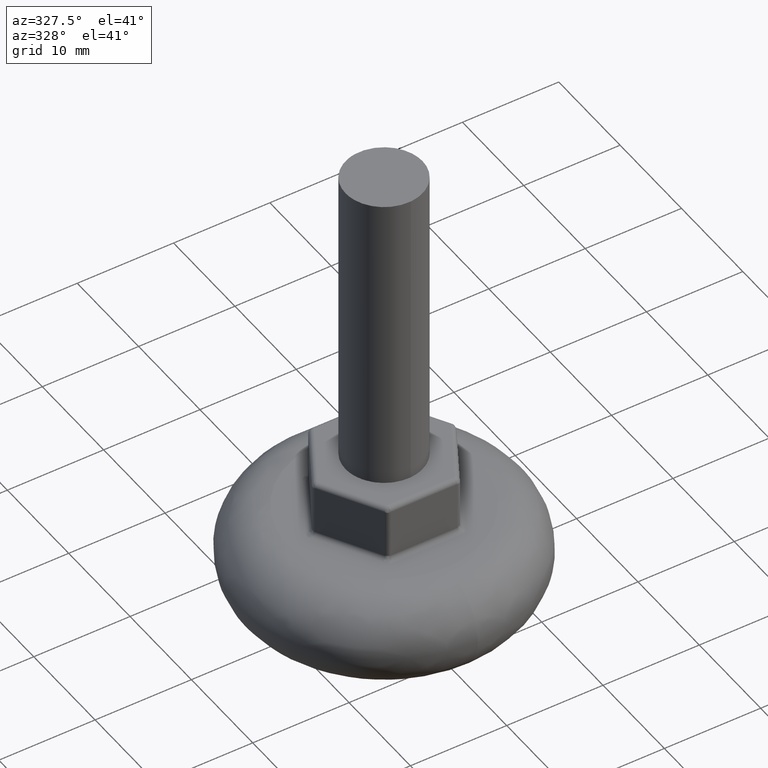
[diagram: clean part render]
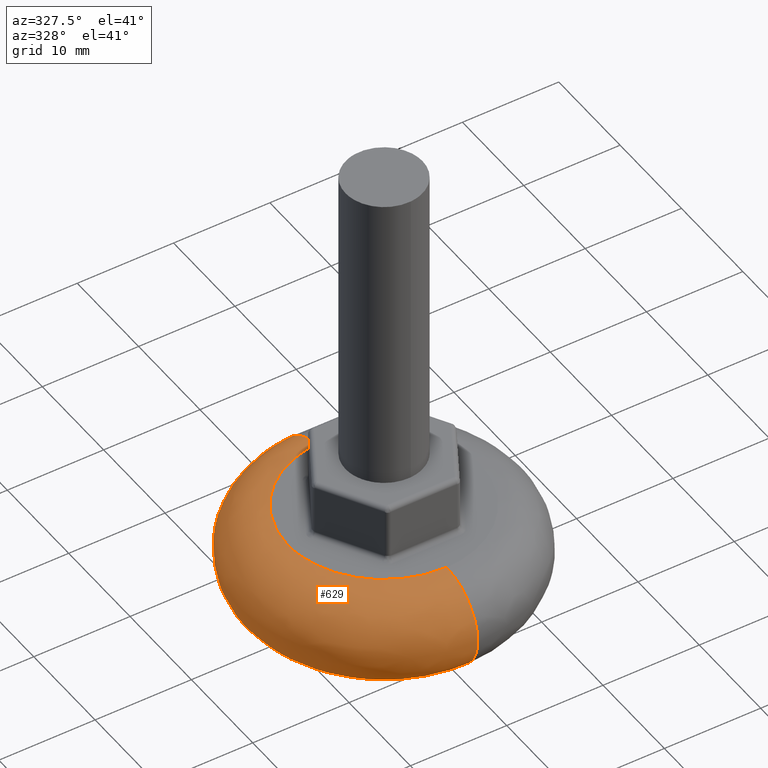
[diagram: same view with one face highlighted and labeled with its STEP entity id]
A machine part, auxiliary view. The second image highlights one B-rep face of the part: STEP entity #629.
In plain terms, the highlighted face is a freeform B-spline surface patch.
Its self-contained STEP definition (entity closure, byte-faithful):
#431=CARTESIAN_POINT('',(-0.697329160819693,9.975647072016340,1.951116E-011));
#432=VERTEX_POINT('',#431);
#450=CARTESIAN_POINT('',(-0.697332515771808,9.975656738490059,9.999999999999998));
#451=VERTEX_POINT('',#450);
#452=CARTESIAN_POINT('',(-0.697332515771808,9.975656738490059,9.999999999999998));
#453=CARTESIAN_POINT('',(-1.045998773638240,14.963485107519068,9.999999999826517));
#454=CARTESIAN_POINT('',(-1.045997440539177,14.963485200750728,5.000000000004879));
#455=CARTESIAN_POINT('',(-1.045996107437481,14.963485293982563,-0.000009876807347));
#456=CARTESIAN_POINT('',(-0.697329160819693,9.975647072016342,1.951116E-011));
#464=(BOUNDED_CURVE()B_SPLINE_CURVE(2,(#452,#453,#454,#455,#456),.UNSPECIFIED.,.F.,.U.)B_SPLINE_CURVE_WITH_KNOTS((3,2,3),(-3.793812489392083,-2.0,-0.206185088074748),.UNSPECIFIED.)CURVE()GEOMETRIC_REPRESENTATION_ITEM()RATIONAL_B_SPLINE_CURVE((0.913747050114148,0.668278774904981,0.977505800795127,0.668278357295710,0.913747713122070))REPRESENTATION_ITEM(''));
#465=EDGE_CURVE('',#451,#432,#464,.T.);
#484=CARTESIAN_POINT('',(0.125660398999122,-9.999210442551867,9.999999999999998));
#485=VERTEX_POINT('',#484);
#499=CARTESIAN_POINT('',(0.125660398968713,-9.999210442366941,8.313839E-016));
#500=VERTEX_POINT('',#499);
#501=CARTESIAN_POINT('',(0.125660398999122,-9.999210442551867,9.999999999999998));
#502=CARTESIAN_POINT('',(0.188490598250293,-14.998815663057238,9.999999998968503));
#503=CARTESIAN_POINT('',(0.188490598250292,-14.998815663057240,5.0));
#504=CARTESIAN_POINT('',(0.188490598250293,-14.998815663057240,6.609087E-010));
#505=CARTESIAN_POINT('',(0.125660398968713,-9.999210442366941,8.313839E-016));
#513=(BOUNDED_CURVE()B_SPLINE_CURVE(2,(#501,#502,#503,#504,#505),.UNSPECIFIED.,.F.,.U.)B_SPLINE_CURVE_WITH_KNOTS((3,2,3),(-3.793812489181637,-2.0,-0.206187510727468),.UNSPECIFIED.)CURVE()GEOMETRIC_REPRESENTATION_ITEM()RATIONAL_B_SPLINE_CURVE((0.934774043604947,0.683657093796952,1.0,0.683657093780923,0.934774043630396))REPRESENTATION_ITEM(''));
#514=EDGE_CURVE('',#485,#500,#513,.T.);
#532=CARTESIAN_POINT('',(0.116764266952522,-9.291316024830799,9.949626890274072));
#533=CARTESIAN_POINT('',(-9.174551757878277,-9.408080291783319,9.949626890274073));
#534=CARTESIAN_POINT('',(-9.291316024830799,-0.116764266952523,9.949626890274072));
#535=CARTESIAN_POINT('',(-9.401582761984905,8.657521982301649,9.949626890274075));
#536=CARTESIAN_POINT('',(-0.647964838406181,9.269429806385281,9.949626890274073));
#537=CARTESIAN_POINT('',(0.188490598250293,-14.998815663057236,10.766040997154828));
#538=CARTESIAN_POINT('',(-14.810325064806944,-15.187306261307528,10.766040997154828));
#539=CARTESIAN_POINT('',(-14.998815663057236,-0.188490598250293,10.766040997154828));
#540=CARTESIAN_POINT('',(-15.176817407903851,13.975692567595450,10.766040997154828));
#541=CARTESIAN_POINT('',(-1.045998773631636,14.963485107606481,10.766040997154825));
#542=CARTESIAN_POINT('',(0.188490598250292,-14.998815663057240,5.0));
#543=CARTESIAN_POINT('',(-14.810325064806939,-15.187306261307533,5.000000000000001));
#544=CARTESIAN_POINT('',(-14.998815663057240,-0.188490598250293,5.0));
#545=CARTESIAN_POINT('',(-15.176817407903860,13.975692567595456,5.000000000000001));
#546=CARTESIAN_POINT('',(-1.045998773631636,14.963485107606484,5.0));
#547=CARTESIAN_POINT('',(0.188490598250292,-14.998815663057238,-0.766051883237120));
#548=CARTESIAN_POINT('',(-14.810325064806944,-15.187306261307528,-0.766051883237120));
#549=CARTESIAN_POINT('',(-14.998815663057238,-0.188490598250293,-0.766051883237120));
#550=CARTESIAN_POINT('',(-15.176817407903854,13.975692567595452,-0.766051883237120));
#551=CARTESIAN_POINT('',(-1.045998773631636,14.963485107606484,-0.766051883237120));
#552=CARTESIAN_POINT('',(0.116764150709547,-9.291306774995706,0.050374432852809));
#553=CARTESIAN_POINT('',(-9.174542624286159,-9.408070925705255,0.050374432852809));
#554=CARTESIAN_POINT('',(-9.291306774995706,-0.116764150709548,0.050374432852809));
#555=CARTESIAN_POINT('',(-9.401573402375361,8.657513363431034,0.050374432852809));
#556=CARTESIAN_POINT('',(-0.647964193334172,9.269420578338695,0.050374432852809));
#564=(BOUNDED_SURFACE()B_SPLINE_SURFACE(2,2,((#532,#537,#542,#547,#552),(#533,#538,#543,#548,#553),(#534,#539,#544,#549,#554),(#535,#540,#545,#550,#555),(#536,#541,#546,#551,#556)),.UNSPECIFIED.,.F.,.F.,.U.)B_SPLINE_SURFACE_WITH_KNOTS((3,2,3),(3,2,3),(0.0,24.852813742385699,48.711514935075961),(0.0,9.129208550381414,18.258428339320218),.UNSPECIFIED.)GEOMETRIC_REPRESENTATION_ITEM()RATIONAL_B_SPLINE_SURFACE(((0.990610515974007,0.652054411383465,1.0,0.652053983043325,0.990611349537385),(0.700467413359925,0.461072095991851,0.707106781186548,0.461071793109633,0.700468002778242),(0.990610515974007,0.652054411383465,1.0,0.652053983043325,0.990611349537385),(0.712073137464488,0.468711388607515,0.718822509939086,0.468711080706981,0.712073736648608),(0.968327525693245,0.637386969561389,0.977505800795127,0.637386550856417,0.968328340506283)))REPRESENTATION_ITEM('')SURFACE());
#565=CARTESIAN_POINT('',(-10.0,0.0,0.0));
#566=VERTEX_POINT('',#565);
#567=CARTESIAN_POINT('',(-10.0,0.0,0.0));
#568=CARTESIAN_POINT('',(-9.999999655630383,9.325366044759520,9.755582E-012));
#569=CARTESIAN_POINT('',(-0.697329160819693,9.975647072016340,1.951116E-011));
#577=(BOUNDED_CURVE()B_SPLINE_CURVE(2,(#567,#568,#569),.UNSPECIFIED.,.F.,.U.)B_SPLINE_CURVE_WITH_KNOTS((3,3),(0.0,0.237833732500926),.UNSPECIFIED.)CURVE()GEOMETRIC_REPRESENTATION_ITEM()RATIONAL_B_SPLINE_CURVE((1.0,0.721360450181545,0.972879973608697))REPRESENTATION_ITEM(''));
#578=EDGE_CURVE('',#566,#432,#577,.T.);
#579=ORIENTED_EDGE('',*,*,#578,.F.);
#580=CARTESIAN_POINT('',(0.125660398968713,-9.999210442366941,8.313839E-016));
#581=CARTESIAN_POINT('',(0.062832680049947,-10.000000000000002,0.0));
#582=CARTESIAN_POINT('',(0.0,-10.0,0.0));
#583=CARTESIAN_POINT('',(-10.000000000000002,-10.000000000000002,0.0));
#584=CARTESIAN_POINT('',(-10.0,0.0,0.0));
#592=(BOUNDED_CURVE()B_SPLINE_CURVE(2,(#580,#581,#582,#583,#584),.UNSPECIFIED.,.F.,.U.)B_SPLINE_CURVE_WITH_KNOTS((3,2,3),(0.747784295917119,0.750000000000000,1.0),.UNSPECIFIED.)CURVE()GEOMETRIC_REPRESENTATION_ITEM()RATIONAL_B_SPLINE_CURVE((0.994854295633404,0.997404141196907,1.0,0.707106781186548,1.0))REPRESENTATION_ITEM(''));
#593=EDGE_CURVE('',#500,#566,#592,.T.);
#594=ORIENTED_EDGE('',*,*,#593,.F.);
#595=ORIENTED_EDGE('',*,*,#514,.F.);
#596=CARTESIAN_POINT('',(-10.0,0.0,10.0));
#597=VERTEX_POINT('',#596);
#598=CARTESIAN_POINT('',(0.125660398999122,-9.999210442551867,9.999999999999998));
#599=CARTESIAN_POINT('',(0.062832680078031,-10.000000000000002,10.000000000000002));
#600=CARTESIAN_POINT('',(0.0,-10.0,10.0));
#601=CARTESIAN_POINT('',(-10.000000000000002,-10.000000000000002,10.000000000000002));
#602=CARTESIAN_POINT('',(-10.0,0.0,10.0));
#610=(BOUNDED_CURVE()B_SPLINE_CURVE(2,(#598,#599,#600,#601,#602),.UNSPECIFIED.,.F.,.U.)B_SPLINE_CURVE_WITH_KNOTS((3,2,3),(0.747784295916131,0.750000000000000,1.0),.UNSPECIFIED.)CURVE()GEOMETRIC_REPRESENTATION_ITEM()RATIONAL_B_SPLINE_CURVE((0.994854295631130,0.997404141195750,1.0,0.707106781186548,1.0))REPRESENTATION_ITEM(''));
#611=EDGE_CURVE('',#485,#597,#610,.T.);
#612=ORIENTED_EDGE('',*,*,#611,.T.);
#613=CARTESIAN_POINT('',(-10.0,0.0,10.0));
#614=CARTESIAN_POINT('',(-9.999999999999998,9.325368472644945,9.999999999999998));
#615=CARTESIAN_POINT('',(-0.697332515771808,9.975656738490059,9.999999999999998));
#623=(BOUNDED_CURVE()B_SPLINE_CURVE(2,(#613,#614,#615),.UNSPECIFIED.,.F.,.U.)B_SPLINE_CURVE_WITH_KNOTS((3,3),(0.0,0.237833686534744),.UNSPECIFIED.)CURVE()GEOMETRIC_REPRESENTATION_ITEM()RATIONAL_B_SPLINE_CURVE((1.0,0.721360504034277,0.972879876386240))REPRESENTATION_ITEM(''));
#624=EDGE_CURVE('',#597,#451,#623,.T.);
#625=ORIENTED_EDGE('',*,*,#624,.T.);
#626=ORIENTED_EDGE('',*,*,#465,.T.);
#627=EDGE_LOOP('',(#579,#594,#595,#612,#625,#626));
#628=FACE_OUTER_BOUND('',#627,.T.);
#629=ADVANCED_FACE('',(#628),#564,.T.);